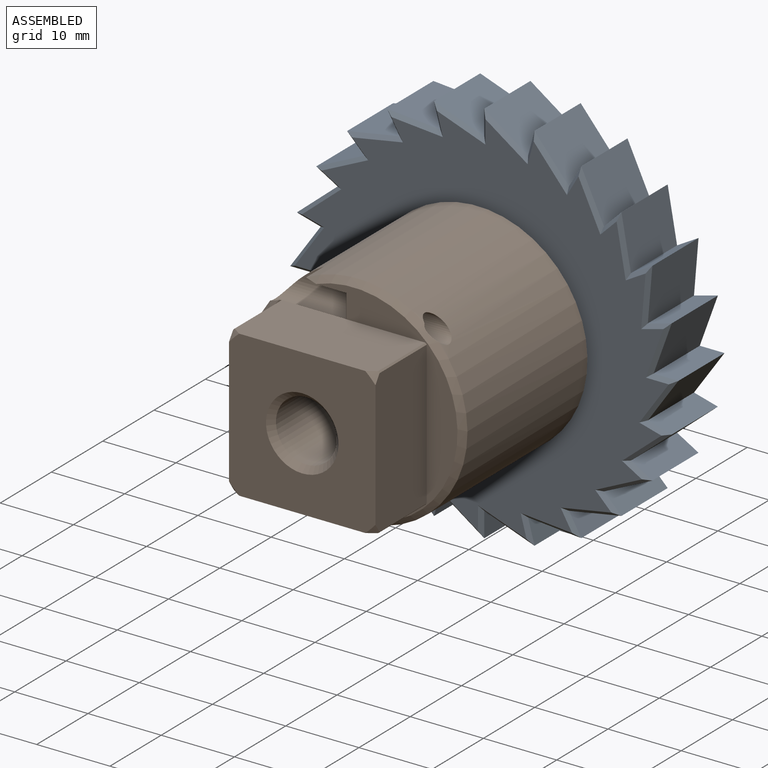
[diagram: assembled view]
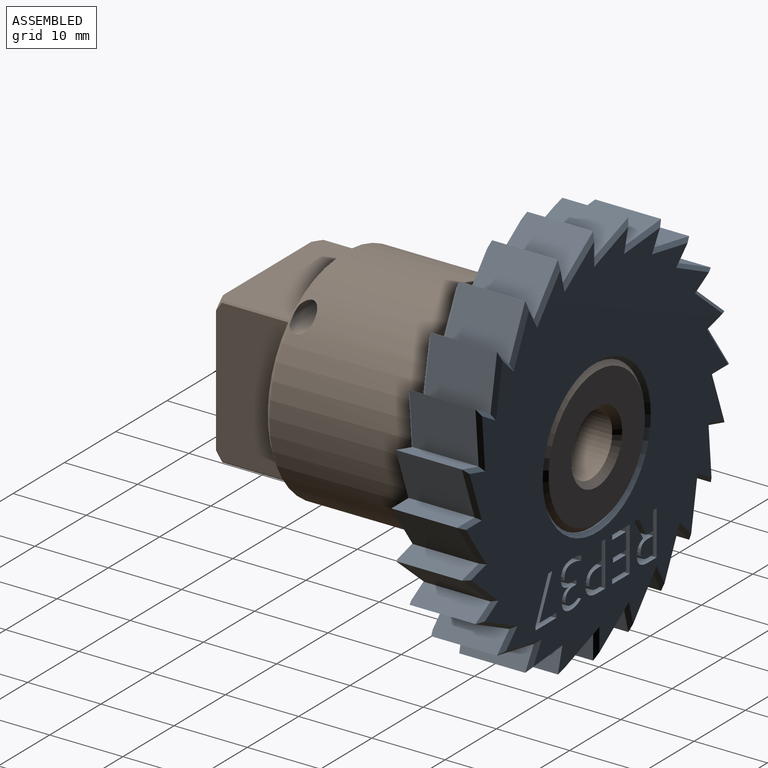
[diagram: assembled view, second angle]
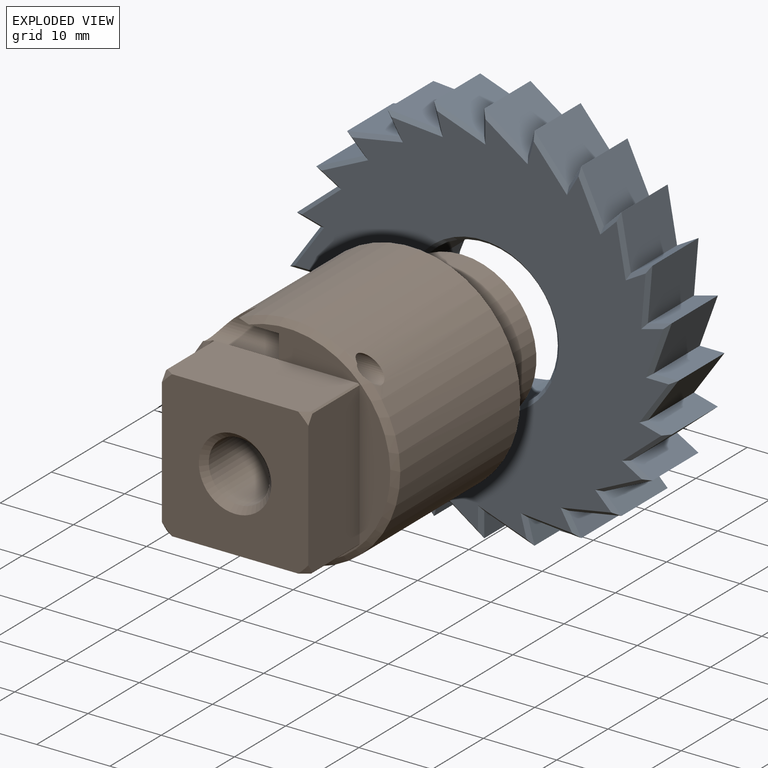
[diagram: exploded view]
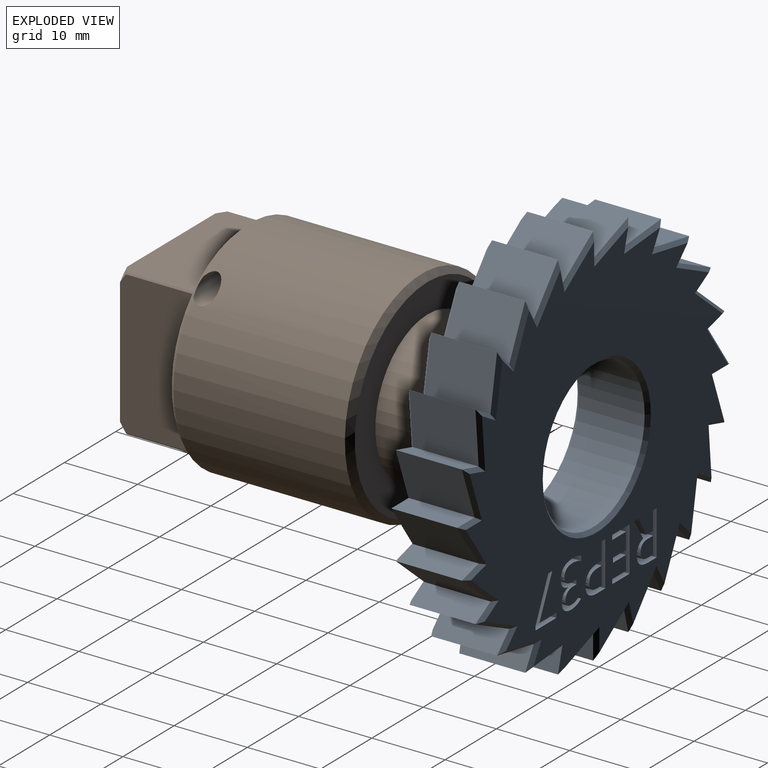
[diagram: exploded view, second angle]
ASSEMBLY  parts=2 mates=2
PART A: 236 faces, bbox 53x53x10 mm
  f0: plane 51.09x51.09mm, normal (0,0,1), area 1373.1mm2, adj f100,f101,f102,f103,f104,f105,f106,f107
  f1: plane 9x6.86mm, normal (-0.34,0.94,0), area 65.6mm2, adj f2,f49,f98,f147
  f2: plane 9x3.38mm, normal (1,0,0), area 30.4mm2, adj f1,f3,f96,f145
  f3: plane 9x5.98mm, normal (-0.57,0.82,0), area 65.6mm2, adj f2,f4,f94,f143
  f4: plane 9x3.27mm, normal (0.97,0.26,0), area 30.4mm2, adj f3,f5,f92,f141
  f5: plane 9x5.57mm, normal (-0.76,0.64,0), area 65.6mm2, adj f4,f6,f90,f139
  f6: plane 9x2.93mm, normal (0.87,0.5,0), area 30.4mm2, adj f5,f7,f88,f137
  f7: plane 9x6.6mm, normal (-0.91,0.42,0), area 65.6mm2, adj f6,f8,f86,f135
  f8: plane 9x2.39mm, normal (0.71,0.71,0), area 30.4mm2, adj f7,f9,f84,f133
  f9: plane 9x7.18mm, normal (-0.98,0.18,0), area 65.6mm2, adj f8,f10,f82,f131
  f10: plane 9x2.93mm, normal (0.5,0.87,0), area 30.4mm2, adj f9,f11,f80,f129
  f11: plane 9x7.27mm, normal (-1,-0.08,0), area 65.6mm2, adj f10,f12,f78,f127
  f12: plane 9x3.27mm, normal (0.26,0.97,0), area 30.4mm2, adj f11,f13,f76,f125
  f13: plane 9x6.86mm, normal (-0.94,-0.34,0), area 65.6mm2, adj f12,f14,f74,f123
  f14: plane 9x3.38mm, normal (0,1,0), area 30.4mm2, adj f13,f15,f72,f121
  f15: plane 9x5.98mm, normal (-0.82,-0.57,0), area 65.6mm2, adj f14,f16,f70,f119
  f16: plane 9x3.27mm, normal (-0.26,0.97,0), area 30.4mm2, adj f15,f17,f68,f117
  f17: plane 9x5.57mm, normal (-0.64,-0.76,0), area 65.6mm2, adj f16,f18,f66,f115
  f18: plane 9x2.93mm, normal (-0.5,0.87,0), area 30.4mm2, adj f17,f19,f64,f113
  f19: plane 9x6.6mm, normal (-0.42,-0.91,0), area 65.6mm2, adj f18,f20,f62,f111
  f20: plane 9x2.39mm, normal (-0.71,0.71,0), area 30.4mm2, adj f19,f21,f60,f109
  f21: plane 9x7.18mm, normal (-0.18,-0.98,0), area 65.6mm2, adj f20,f22,f58,f107
  f22: plane 9x2.93mm, normal (-0.87,0.5,0), area 30.4mm2, adj f21,f23,f56,f105
  f23: plane 9x7.27mm, normal (0.08,-1,0), area 65.6mm2, adj f22,f24,f54,f103
  f24: plane 9x3.27mm, normal (-0.97,0.26,0), area 30.4mm2, adj f23,f25,f52,f101
  f25: plane 9x6.86mm, normal (0.34,-0.94,0), area 65.6mm2, adj f24,f26,f51,f100
  f26: plane 9x3.38mm, normal (-1,0,0), area 30.4mm2, adj f25,f27,f53,f102
  f27: plane 9x5.98mm, normal (0.57,-0.82,0), area 65.6mm2, adj f26,f28,f55,f104
  f28: plane 9x3.27mm, normal (-0.97,-0.26,0), area 30.4mm2, adj f27,f29,f57,f106
  f29: plane 9x5.57mm, normal (0.76,-0.64,0), area 65.6mm2, adj f28,f30,f59,f108
  f30: plane 9x2.93mm, normal (-0.87,-0.5,0), area 30.4mm2, adj f29,f31,f61,f110
  f31: plane 9x6.6mm, normal (0.91,-0.42,0), area 65.6mm2, adj f30,f32,f63,f112
  f32: plane 9x2.39mm, normal (-0.71,-0.71,0), area 30.4mm2, adj f31,f33,f65,f114
  f33: plane 9x7.18mm, normal (0.98,-0.18,0), area 65.6mm2, adj f32,f34,f67,f116
  f34: plane 9x2.93mm, normal (-0.5,-0.87,0), area 30.4mm2, adj f33,f35,f69,f118
  f35: plane 9x7.27mm, normal (1,0.08,0), area 65.6mm2, adj f34,f36,f71,f120
  f36: plane 9x3.27mm, normal (-0.26,-0.97,0), area 30.4mm2, adj f35,f37,f73,f122
  f37: plane 9x6.86mm, normal (0.94,0.34,0), area 65.6mm2, adj f36,f38,f75,f124
  f38: plane 9x3.38mm, normal (0,-1,0), area 30.4mm2, adj f37,f39,f77,f126
  f39: plane 9x5.98mm, normal (0.82,0.57,0), area 65.6mm2, adj f38,f40,f79,f128
  f40: plane 9x3.27mm, normal (0.26,-0.97,0), area 30.4mm2, adj f39,f41,f81,f130
  f41: plane 9x5.57mm, normal (0.64,0.76,0), area 65.6mm2, adj f40,f42,f83,f132
  f42: plane 9x2.93mm, normal (0.5,-0.87,0), area 30.4mm2, adj f41,f43,f85,f134
  f43: plane 9x6.6mm, normal (0.42,0.91,0), area 65.6mm2, adj f42,f44,f87,f136
  f44: plane 9x2.39mm, normal (0.71,-0.71,0), area 30.4mm2, adj f43,f45,f89,f138
  f45: plane 9x7.18mm, normal (0.18,0.98,0), area 65.6mm2, adj f44,f46,f91,f140
  f46: plane 9x2.93mm, normal (0.87,-0.5,0), area 30.4mm2, adj f45,f47,f93,f142
  f47: plane 9x7.27mm, normal (-0.08,1,0), area 65.6mm2, adj f46,f49,f95,f144
  f48: cylinder r=10.05mm len=20.1mm, axis (0,0,-1), area 568.3mm2, adj f99,f148
  f49: plane 9x3.27mm, normal (0.97,-0.26,0), area 30.4mm2, adj f1,f47,f97,f146
  f50: plane 51.09x51.09mm, normal (0,0,-1), area 1428.1mm2, adj f51,f52,f53,f54,f55,f56,f57,f58
  f51: plane 7.36x3.19mm, normal (0.24,-0.67,-0.71), area 5.1mm2, adj f25,f50,f52,f53
  f52: plane 3.82x1.54mm, normal (-0.68,0.18,-0.71), area 2.3mm2, adj f24,f50,f51,f54
  f53: plane 4.09x0.5mm, normal (-0.71,0,-0.71), area 2.3mm2, adj f26,f50,f51,f55
  f54: plane 7.93x1.18mm, normal (0.06,-0.7,-0.71), area 5.1mm2, adj f23,f50,f52,f56
  f55: plane 6.28x4.99mm, normal (0.4,-0.58,-0.71), area 5.1mm2, adj f27,f50,f53,f57
  f56: plane 3.29x2.48mm, normal (-0.61,0.35,-0.71), area 2.3mm2, adj f22,f50,f54,f58
  f57: plane 4.08x1.11mm, normal (-0.68,-0.18,-0.71), area 2.3mm2, adj f28,f50,f55,f59
  f58: plane 7.97x1.61mm, normal (-0.12,-0.7,-0.71), area 5.1mm2, adj f21,f50,f56,f60
  f59: plane 6.44x4.78mm, normal (0.54,-0.46,-0.71), area 5.1mm2, adj f29,f50,f57,f61
  f60: plane 3.25x2.54mm, normal (-0.5,0.5,-0.71), area 2.3mm2, adj f20,f50,f58,f62
  f61: plane 3.79x1.69mm, normal (-0.61,-0.35,-0.71), area 2.3mm2, adj f30,f50,f59,f63
  f62: plane 7.46x3.14mm, normal (-0.3,-0.64,-0.71), area 5.1mm2, adj f19,f50,f60,f64
  f63: plane 7.46x3.14mm, normal (0.64,-0.3,-0.71), area 5.1mm2, adj f31,f50,f61,f65
  f64: plane 3.79x1.69mm, normal (-0.35,0.61,-0.71), area 2.3mm2, adj f18,f50,f62,f66
  f65: plane 3.25x2.54mm, normal (-0.5,-0.5,-0.71), area 2.3mm2, adj f32,f50,f63,f67
  f66: plane 6.44x4.78mm, normal (-0.46,-0.54,-0.71), area 5.1mm2, adj f17,f50,f64,f68
  f67: plane 7.97x1.61mm, normal (0.7,-0.12,-0.71), area 5.1mm2, adj f33,f50,f65,f69
  f68: plane 4.08x1.11mm, normal (-0.18,0.68,-0.71), area 2.3mm2, adj f16,f50,f66,f70
  f69: plane 3.29x2.48mm, normal (-0.35,-0.61,-0.71), area 2.3mm2, adj f34,f50,f67,f71
  f70: plane 6.28x4.99mm, normal (-0.58,-0.4,-0.71), area 5.1mm2, adj f15,f50,f68,f72
  f71: plane 7.93x1.18mm, normal (0.7,0.06,-0.71), area 5.1mm2, adj f35,f50,f69,f73
  f72: plane 4.09x0.5mm, normal (0,0.71,-0.71), area 2.3mm2, adj f14,f50,f70,f74
  f73: plane 3.82x1.54mm, normal (-0.18,-0.68,-0.71), area 2.3mm2, adj f36,f50,f71,f75
  f74: plane 7.36x3.19mm, normal (-0.67,-0.24,-0.71), area 5.1mm2, adj f13,f50,f72,f76
  f75: plane 7.36x3.19mm, normal (0.67,0.24,-0.71), area 5.1mm2, adj f37,f50,f73,f77
  f76: plane 3.82x1.54mm, normal (0.18,0.68,-0.71), area 2.3mm2, adj f12,f50,f74,f78
  f77: plane 4.09x0.5mm, normal (0,-0.71,-0.71), area 2.3mm2, adj f38,f50,f75,f79
  f78: plane 7.93x1.18mm, normal (-0.7,-0.06,-0.71), area 5.1mm2, adj f11,f50,f76,f80
  f79: plane 6.28x4.99mm, normal (0.58,0.4,-0.71), area 5.1mm2, adj f39,f50,f77,f81
  f80: plane 3.29x2.48mm, normal (0.35,0.61,-0.71), area 2.3mm2, adj f10,f50,f78,f82
  f81: plane 4.08x1.11mm, normal (0.18,-0.68,-0.71), area 2.3mm2, adj f40,f50,f79,f83
  f82: plane 7.97x1.61mm, normal (-0.7,0.12,-0.71), area 5.1mm2, adj f9,f50,f80,f84
  f83: plane 6.44x4.78mm, normal (0.46,0.54,-0.71), area 5.1mm2, adj f41,f50,f81,f85
  f84: plane 3.25x2.54mm, normal (0.5,0.5,-0.71), area 2.3mm2, adj f8,f50,f82,f86
  f85: plane 3.79x1.69mm, normal (0.35,-0.61,-0.71), area 2.3mm2, adj f42,f50,f83,f87
  f86: plane 7.46x3.14mm, normal (-0.64,0.3,-0.71), area 5.1mm2, adj f7,f50,f84,f88
  f87: plane 7.46x3.14mm, normal (0.3,0.64,-0.71), area 5.1mm2, adj f43,f50,f85,f89
  f88: plane 3.79x1.69mm, normal (0.61,0.35,-0.71), area 2.3mm2, adj f6,f50,f86,f90
  f89: plane 3.25x2.54mm, normal (0.5,-0.5,-0.71), area 2.3mm2, adj f44,f50,f87,f91
  f90: plane 6.44x4.78mm, normal (-0.54,0.46,-0.71), area 5.1mm2, adj f5,f50,f88,f92
  f91: plane 7.97x1.61mm, normal (0.12,0.7,-0.71), area 5.1mm2, adj f45,f50,f89,f93
  f92: plane 4.08x1.11mm, normal (0.68,0.18,-0.71), area 2.3mm2, adj f4,f50,f90,f94
  f93: plane 3.29x2.48mm, normal (0.61,-0.35,-0.71), area 2.3mm2, adj f46,f50,f91,f95
  f94: plane 6.28x4.99mm, normal (-0.4,0.58,-0.71), area 5.1mm2, adj f3,f50,f92,f96
  f95: plane 7.93x1.18mm, normal (-0.06,0.7,-0.71), area 5.1mm2, adj f47,f50,f93,f97
  f96: plane 4.09x0.5mm, normal (0.71,0,-0.71), area 2.3mm2, adj f2,f50,f94,f98
  f97: plane 3.82x1.54mm, normal (0.68,-0.18,-0.71), area 2.3mm2, adj f49,f50,f95,f98
  f98: plane 7.36x3.19mm, normal (-0.24,0.67,-0.71), area 5.1mm2, adj f1,f50,f96,f97
  f99: cone r=10.55mm half-angle=45deg, axis (0,0,-1), area 45.8mm2, adj f48,f50
  f100: plane 7.36x3.19mm, normal (0.24,-0.67,0.71), area 5.1mm2, adj f0,f25,f101,f102
  f101: plane 3.82x1.54mm, normal (-0.68,0.18,0.71), area 2.3mm2, adj f0,f24,f100,f103
  f102: plane 4.09x0.5mm, normal (-0.71,0,0.71), area 2.3mm2, adj f0,f26,f100,f104
  f103: plane 7.93x1.18mm, normal (0.06,-0.7,0.71), area 5.1mm2, adj f0,f23,f101,f105
  f104: plane 6.28x4.99mm, normal (0.4,-0.58,0.71), area 5.1mm2, adj f0,f27,f102,f106
  f105: plane 3.29x2.48mm, normal (-0.61,0.35,0.71), area 2.3mm2, adj f0,f22,f103,f107
  f106: plane 4.08x1.11mm, normal (-0.68,-0.18,0.71), area 2.3mm2, adj f0,f28,f104,f108
  f107: plane 7.97x1.61mm, normal (-0.12,-0.7,0.71), area 5.1mm2, adj f0,f21,f105,f109
  f108: plane 6.44x4.78mm, normal (0.54,-0.46,0.71), area 5.1mm2, adj f0,f29,f106,f110
  f109: plane 3.25x2.54mm, normal (-0.5,0.5,0.71), area 2.3mm2, adj f0,f20,f107,f111
  f110: plane 3.79x1.69mm, normal (-0.61,-0.35,0.71), area 2.3mm2, adj f0,f30,f108,f112
  f111: plane 7.46x3.14mm, normal (-0.3,-0.64,0.71), area 5.1mm2, adj f0,f19,f109,f113
  f112: plane 7.46x3.14mm, normal (0.64,-0.3,0.71), area 5.1mm2, adj f0,f31,f110,f114
  f113: plane 3.79x1.69mm, normal (-0.35,0.61,0.71), area 2.3mm2, adj f0,f18,f111,f115
  f114: plane 3.25x2.54mm, normal (-0.5,-0.5,0.71), area 2.3mm2, adj f0,f32,f112,f116
  f115: plane 6.44x4.78mm, normal (-0.46,-0.54,0.71), area 5.1mm2, adj f0,f17,f113,f117
  f116: plane 7.97x1.61mm, normal (0.7,-0.12,0.71), area 5.1mm2, adj f0,f33,f114,f118
  f117: plane 4.08x1.11mm, normal (-0.18,0.68,0.71), area 2.3mm2, adj f0,f16,f115,f119
  f118: plane 3.29x2.48mm, normal (-0.35,-0.61,0.71), area 2.3mm2, adj f0,f34,f116,f120
  f119: plane 6.28x4.99mm, normal (-0.58,-0.4,0.71), area 5.1mm2, adj f0,f15,f117,f121
  f120: plane 7.93x1.18mm, normal (0.7,0.06,0.71), area 5.1mm2, adj f0,f35,f118,f122
  f121: plane 4.09x0.5mm, normal (0,0.71,0.71), area 2.3mm2, adj f0,f14,f119,f123
  f122: plane 3.82x1.54mm, normal (-0.18,-0.68,0.71), area 2.3mm2, adj f0,f36,f120,f124
  f123: plane 7.36x3.19mm, normal (-0.67,-0.24,0.71), area 5.1mm2, adj f0,f13,f121,f125
  f124: plane 7.36x3.19mm, normal (0.67,0.24,0.71), area 5.1mm2, adj f0,f37,f122,f126
  f125: plane 3.82x1.54mm, normal (0.18,0.68,0.71), area 2.3mm2, adj f0,f12,f123,f127
  f126: plane 4.09x0.5mm, normal (0,-0.71,0.71), area 2.3mm2, adj f0,f38,f124,f128
  f127: plane 7.93x1.18mm, normal (-0.7,-0.06,0.71), area 5.1mm2, adj f0,f11,f125,f129
  f128: plane 6.28x4.99mm, normal (0.58,0.4,0.71), area 5.1mm2, adj f0,f39,f126,f130
  f129: plane 3.29x2.48mm, normal (0.35,0.61,0.71), area 2.3mm2, adj f0,f10,f127,f131
  f130: plane 4.08x1.11mm, normal (0.18,-0.68,0.71), area 2.3mm2, adj f0,f40,f128,f132
  f131: plane 7.97x1.61mm, normal (-0.7,0.12,0.71), area 5.1mm2, adj f0,f9,f129,f133
  f132: plane 6.44x4.78mm, normal (0.46,0.54,0.71), area 5.1mm2, adj f0,f41,f130,f134
  f133: plane 3.25x2.54mm, normal (0.5,0.5,0.71), area 2.3mm2, adj f0,f8,f131,f135
  f134: plane 3.79x1.69mm, normal (0.35,-0.61,0.71), area 2.3mm2, adj f0,f42,f132,f136
  f135: plane 7.46x3.14mm, normal (-0.64,0.3,0.71), area 5.1mm2, adj f0,f7,f133,f137
  f136: plane 7.46x3.14mm, normal (0.3,0.64,0.71), area 5.1mm2, adj f0,f43,f134,f138
  f137: plane 3.79x1.69mm, normal (0.61,0.35,0.71), area 2.3mm2, adj f0,f6,f135,f139
  f138: plane 3.25x2.54mm, normal (0.5,-0.5,0.71), area 2.3mm2, adj f0,f44,f136,f140
  f139: plane 6.44x4.78mm, normal (-0.54,0.46,0.71), area 5.1mm2, adj f0,f5,f137,f141
  f140: plane 7.97x1.61mm, normal (0.12,0.7,0.71), area 5.1mm2, adj f0,f45,f138,f142
  f141: plane 4.08x1.11mm, normal (0.68,0.18,0.71), area 2.3mm2, adj f0,f4,f139,f143
  f142: plane 3.29x2.48mm, normal (0.61,-0.35,0.71), area 2.3mm2, adj f0,f46,f140,f144
  f143: plane 6.28x4.99mm, normal (-0.4,0.58,0.71), area 5.1mm2, adj f0,f3,f141,f145
  f144: plane 7.93x1.18mm, normal (-0.06,0.7,0.71), area 5.1mm2, adj f0,f47,f142,f146
  f145: plane 4.09x0.5mm, normal (0.71,0,0.71), area 2.3mm2, adj f0,f2,f143,f147
  f146: plane 3.82x1.54mm, normal (0.68,-0.18,0.71), area 2.3mm2, adj f0,f49,f144,f147
  f147: plane 7.36x3.19mm, normal (-0.24,0.67,0.71), area 5.1mm2, adj f0,f1,f145,f146
  f148: cone r=10.05mm half-angle=45deg, axis (0,0,1), area 45.8mm2, adj f0,f48
  f149: plane 3.39x2mm, normal (0,1,0), area 6.8mm2, adj f0,f150,f160,f161
  f150: plane 2x0.63mm, normal (-1,0,0), area 1.3mm2, adj f0,f149,f151,f161
  f151: plane 2.68x2mm, normal (0,-1,0), area 5.4mm2, adj f0,f150,f152,f161
  f152: plane 2.24x2mm, normal (-1,0,0), area 4.5mm2, adj f0,f151,f153,f161
  f153: plane 2.52x2mm, normal (0,1,0), area 5mm2, adj f0,f152,f154,f161
  f154: plane 2x0.62mm, normal (-1,0,0), area 1.2mm2, adj f0,f153,f155,f161
  f155: plane 2.52x2mm, normal (0,-1,0), area 5mm2, adj f0,f154,f156,f161
  f156: plane 2x1.96mm, normal (-1,0,0), area 3.9mm2, adj f0,f155,f157,f161
  f157: plane 2.68x2mm, normal (0,1,0), area 5.4mm2, adj f0,f156,f158,f161
  f158: plane 2x0.63mm, normal (-1,0,0), area 1.3mm2, adj f0,f157,f159,f161
  f159: plane 3.39x2mm, normal (0,-1,0), area 6.8mm2, adj f0,f158,f160,f161
  f160: plane 6.08x2mm, normal (1,0,0), area 12.2mm2, adj f0,f149,f159,f161
  f161: plane 6.08x3.39mm, normal (0,0,1), area 9.3mm2, adj f149,f150,f151,f152,f153,f154,f155,f156
  f162: extruded ~2x0.95mm, area 2.1mm2, adj f0,f163,f189,f190
  f163: extruded ~2x1.11mm, area 2.5mm2, adj f0,f162,f164,f190
  f164: extruded ~2x1.38mm, area 2.9mm2, adj f0,f163,f165,f190
  f165: extruded ~2x1.03mm, area 2.1mm2, adj f0,f164,f166,f190
  f166: extruded ~2x0.86mm, area 2mm2, adj f0,f165,f167,f190
  f167: plane 2x0.47mm, normal (0.8,0.6,0), area 1.2mm2, adj f0,f166,f168,f190
  f168: extruded ~2x0.81mm, area 1.8mm2, adj f0,f167,f169,f190
  f169: extruded ~2x0.75mm, area 1.5mm2, adj f0,f168,f170,f190
  f170: extruded ~2x0.83mm, area 1.8mm2, adj f0,f169,f171,f190
  f171: extruded ~2x0.7mm, area 1.6mm2, adj f0,f170,f172,f190
  f172: extruded ~2x0.87mm, area 2mm2, adj f0,f171,f173,f190
  f173: extruded ~2x1.13mm, area 2.4mm2, adj f0,f172,f174,f190
  f174: plane 2x0.61mm, normal (0,-1,0), area 1.2mm2, adj f0,f173,f175,f190
  f175: plane 2x0.59mm, normal (1,0,0), area 1.2mm2, adj f0,f174,f176,f190
  f176: plane 2x0.6mm, normal (0,1,0), area 1.2mm2, adj f0,f175,f177,f190
  f177: extruded ~2x1.74mm, area 4.7mm2, adj f0,f176,f178,f190
  f178: extruded ~2x1.58mm, area 4.6mm2, adj f0,f177,f179,f190
  f179: extruded ~2x0.85mm, area 1.7mm2, adj f0,f178,f180,f190
  f180: extruded ~2x0.84mm, area 1.8mm2, adj f0,f179,f181,f190
  f181: plane 2x0.66mm, normal (1,0,0), area 1.3mm2, adj f0,f180,f182,f190
  f182: extruded ~2x0.78mm, area 1.6mm2, adj f0,f181,f183,f190
  f183: extruded ~2x0.88mm, area 1.8mm2, adj f0,f182,f184,f190
  f184: extruded ~2x1.71mm, area 3.6mm2, adj f0,f183,f185,f190
  f185: extruded ~2x1.34mm, area 3mm2, adj f0,f184,f186,f190
  f186: extruded ~2x0.98mm, area 2.1mm2, adj f0,f185,f187,f190
  f187: extruded ~2x1.09mm, area 2.4mm2, adj f0,f186,f188,f190
  f188: plane 2x0.03mm, normal (-1,0,0), area 0.1mm2, adj f0,f187,f189,f190
  f189: extruded ~2x0.93mm, area 2.1mm2, adj f0,f162,f188,f190
  f190: plane 6.25x3.98mm, normal (0,0,1), area 8.6mm2, adj f162,f163,f164,f165,f166,f167,f168,f169
  f191: plane 5.45x2.52mm, normal (0.91,-0.42,0), area 12mm2, adj f0,f192,f197,f198
  f192: plane 2x0.77mm, normal (0,1,0), area 1.5mm2, adj f0,f191,f193,f198
  f193: plane 5.53x2.49mm, normal (-0.91,0.41,0), area 12.1mm2, adj f0,f192,f194,f198
  f194: plane 2x0.55mm, normal (-1,0,0), area 1.1mm2, adj f0,f193,f195,f198
  f195: plane 4.05x2mm, normal (0,-1,0), area 8.1mm2, adj f0,f194,f196,f198
  f196: plane 2x0.64mm, normal (1,0,0), area 1.3mm2, adj f0,f195,f197,f198
  f197: plane 3.32x2mm, normal (0,1,0), area 6.6mm2, adj f0,f191,f196,f198
  f198: plane 6.08x4.05mm, normal (0,0,1), area 6.6mm2, adj f191,f192,f193,f194,f195,f196,f197
  f199: plane 2x0.97mm, normal (0,-1,0), area 1.9mm2, adj f200,f216,f217,f234
  f200: plane 2.33x2mm, normal (-1,0,0), area 4.7mm2, adj f199,f201,f217,f234
  f201: plane 2x0.92mm, normal (0,1,0), area 1.8mm2, adj f200,f202,f217,f234
  f202: extruded ~2x1.14mm, area 2.4mm2, adj f201,f203,f217,f234
  f203: extruded ~2x0.87mm, area 2mm2, adj f202,f204,f217,f234
  f204: extruded ~2x0.89mm, area 2mm2, adj f203,f216,f217,f234
  f205: plane 2.53x2mm, normal (-1,0,0), area 5.1mm2, adj f0,f206,f215,f217
  f206: plane 2x1.27mm, normal (0,1,0), area 2.5mm2, adj f0,f205,f207,f217
  f207: plane 2.53x2mm, normal (0.86,0.5,0), area 5.9mm2, adj f0,f206,f208,f217
  f208: plane 2x0.84mm, normal (0,1,0), area 1.7mm2, adj f0,f207,f209,f217
  f209: plane 2.73x2mm, normal (-0.86,-0.52,0), area 6.4mm2, adj f0,f208,f210,f217
  f210: extruded ~2x1.63mm, area 4.4mm2, adj f0,f209,f211,f217
  f211: extruded ~2x1.29mm, area 2.9mm2, adj f0,f210,f212,f217
  f212: extruded ~2x1.65mm, area 3.5mm2, adj f0,f211,f213,f217
  f213: plane 2x1.67mm, normal (0,-1,0), area 3.3mm2, adj f0,f212,f214,f217
  f214: plane 6.08x2mm, normal (1,0,0), area 12.2mm2, adj f0,f213,f215,f217
  f215: plane 2x0.71mm, normal (0,1,0), area 1.4mm2, adj f0,f205,f214,f217
  f216: extruded ~2x1.1mm, area 2.3mm2, adj f199,f204,f217,f234
  f217: plane 6.08x4.29mm, normal (0,0,1), area 11.1mm2, adj f199,f200,f201,f202,f203,f204,f205,f206
  f218: plane 2x0.64mm, normal (0,-1,0), area 1.3mm2, adj f219,f232,f233,f235
  f219: plane 2.47x2mm, normal (-1,0,0), area 4.9mm2, adj f218,f220,f233,f235
  f220: plane 2x0.79mm, normal (0,1,0), area 1.6mm2, adj f219,f221,f233,f235
  f221: extruded ~2x1.23mm, area 2.6mm2, adj f220,f222,f233,f235
  f222: extruded ~2x0.9mm, area 2mm2, adj f221,f223,f233,f235
  f223: extruded ~2x0.97mm, area 2.2mm2, adj f222,f232,f233,f235
  f224: extruded ~2x1.42mm, area 3.2mm2, adj f0,f225,f231,f233
  f225: extruded ~2.28x2mm, area 6.6mm2, adj f0,f224,f226,f233
  f226: plane 2x1.58mm, normal (0,-1,0), area 3.2mm2, adj f0,f225,f227,f233
  f227: plane 6.08x2mm, normal (1,0,0), area 12.2mm2, adj f0,f226,f228,f233
  f228: plane 2x0.71mm, normal (0,1,0), area 1.4mm2, adj f0,f227,f229,f233
  f229: plane 2.39x2mm, normal (-1,0,0), area 4.8mm2, adj f0,f228,f230,f233
  f230: plane 2x0.72mm, normal (0,1,0), area 1.4mm2, adj f0,f229,f231,f233
  f231: extruded ~2x1.8mm, area 3.8mm2, adj f0,f224,f230,f233
  f232: extruded ~2x1.36mm, area 2.8mm2, adj f218,f223,f233,f235
  f233: plane 6.08x3.86mm, normal (0,0,1), area 9.1mm2, adj f218,f219,f220,f221,f222,f223,f224,f225
  f234: plane 2.42x2.33mm, normal (0,0,1), area 5.1mm2, adj f199,f200,f201,f202,f203,f204,f216
  f235: plane 2.47x2.42mm, normal (0,0,1), area 5.3mm2, adj f218,f219,f220,f221,f222,f223,f232
PART B: 33 faces, bbox 30.1x45.1x30.1 mm
  f0: cylinder r=14mm len=9.2mm, axis (0,1,0), area 2.6mm2, adj f4,f11,f29,f32
  f1: cylinder r=14mm len=9.2mm, axis (0,1,0), area 2.6mm2, adj f5,f7,f11,f29,f30
  f2: cylinder r=14mm len=9.2mm, axis (0,1,0), area 2.6mm2, adj f6,f11,f31,f32
  f3: plane 20x20mm, normal (0,-1,0), area 319.4mm2, adj f4,f5,f6,f25,f26,f29,f30,f31
  f4: cone r=14mm half-angle=45deg, axis (0,1,0), area 1.3mm2, adj f0,f3,f29,f32
  f5: cone r=14mm half-angle=45deg, axis (0,1,0), area 1.3mm2, adj f1,f3,f29,f30
  f6: cone r=14mm half-angle=45deg, axis (0,1,0), area 1.3mm2, adj f2,f3,f31,f32
  f7: cylinder r=2.25mm len=11.18mm, axis (-1,0,0), area 63.5mm2, adj f1,f9,f11,f12,f13,f28,f29
  f8: plane 6.12x4.34mm, normal (0,0,-1), area 24.9mm2, adj f9,f11,f12,f13,f28
  f9: plane 4.5x4.27mm, normal (-1,0,0), area 10.3mm2, adj f7,f8,f11,f27,f28,f29
  f10: cylinder r=14mm len=9.2mm, axis (0,1,0), area 2.6mm2, adj f11,f25,f30,f31
  f11: plane 28.4x28.4mm, normal (0,-1,0), area 210.9mm2, adj f0,f1,f2,f7,f8,f9,f10,f13
  f12: cylinder r=15mm len=30mm, axis (0,1,0), area 2173.1mm2, adj f7,f8,f13,f24,f27,f28
  f13: cone r=15mm half-angle=45deg, axis (0,1,0), area 95.9mm2, adj f7,f8,f11,f12,f27
  f14: cylinder r=5.15mm len=15mm, axis (0,1,0), area 485.4mm2, adj f15,f21
  f15: plane 10.3x10.3mm, normal (0,1,0), area 29.2mm2, adj f14,f16
  f16: cylinder r=4.15mm len=14.2mm, axis (0,1,0), area 370.3mm2, adj f15,f26
  f17: plane 28.4x28.4mm, normal (0,1,0), area 306.6mm2, adj f18,f24
  f18: cylinder r=10.2mm len=20.4mm, axis (0,1,0), area 589.6mm2, adj f17,f23
  f19: plane 18.8x18.8mm, normal (0,1,0), area 200.6mm2, adj f22,f23
  f20: cylinder r=4.15mm len=14.2mm, axis (0,1,0), area 370.3mm2, adj f21,f22
  f21: plane 10.3x10.3mm, normal (0,-1,0), area 29.2mm2, adj f14,f20
  f22: cone r=4.15mm half-angle=45deg, axis (0,1,0), area 32.3mm2, adj f19,f20
  f23: cone r=9.4mm half-angle=45deg, axis (0,-1,0), area 69.7mm2, adj f18,f19
  f24: cone r=14.2mm half-angle=45deg, axis (0,-1,0), area 103.8mm2, adj f12,f17
  f25: cone r=14mm half-angle=45deg, axis (0,1,0), area 1.3mm2, adj f3,f10,f30,f31
  f26: cone r=4.95mm half-angle=45deg, axis (0,-1,0), area 32.3mm2, adj f3,f16
  f27: cylinder r=1.5mm len=12.61mm, axis (1,0,0), area 103.8mm2, adj f9,f12,f13
  f28: plane 9.2x2.25mm, normal (0,-1,0), area 17.5mm2, adj f7,f8,f9,f12
  f29: plane 19.63x10.03mm, normal (0,0,1), area 194.9mm2, adj f0,f1,f3,f4,f5,f7,f9,f11
  f30: plane 19.63x10.03mm, normal (-1,0,0), area 195mm2, adj f1,f3,f5,f10,f11,f25
  f31: plane 19.63x10.03mm, normal (0,0,-1), area 195mm2, adj f2,f3,f6,f10,f11,f25
  f32: plane 19.63x10.03mm, normal (1,0,0), area 195mm2, adj f0,f2,f3,f4,f6,f11
PLACE A rot(axis=(-1,0,0),90deg) t=(-28.69,20.63,-6.17)mm
PLACE B rot(axis=(1,0,0),0deg) t=(-28.69,-14.37,-6.17)mm
MATE cylindrical A.f48 <-> B.f0  axis (0,-1,0) through (-28.69,21.13,-6.17)mm
MATE planar B.f0 <-> A.f48  axis (0,1,0) through (-28.69,20.63,-6.17)mm
